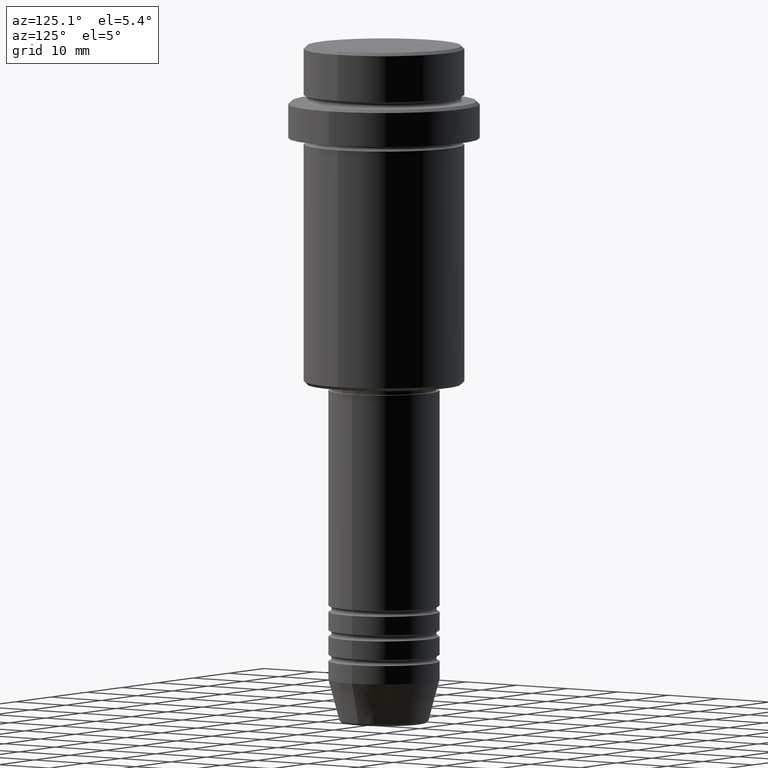
[diagram: clean part render]
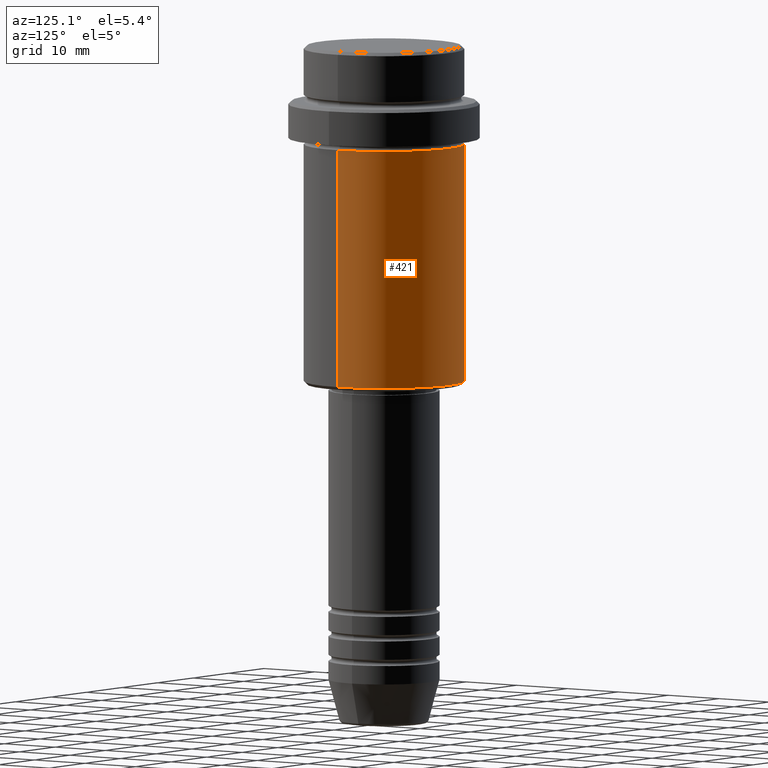
[diagram: same view with one face highlighted and labeled with its STEP entity id]
A machine part, auxiliary view. The second image highlights one B-rep face of the part: STEP entity #421.
In plain terms, the highlighted cylindrical surface (partial cylindrical patch) has radius 13 mm, axis along (-0, -0, 1).
Its self-contained STEP definition (entity closure, byte-faithful):
#39 = ORIENTED_EDGE ( 'NONE', *, *, #269, .F. ) ;
#51 = CIRCLE ( 'NONE', #1077, 13.00000000000000000 ) ;
#95 = LINE ( 'NONE', #523, #253 ) ;
#111 = ORIENTED_EDGE ( 'NONE', *, *, #211, .T. ) ;
#180 = EDGE_CURVE ( 'NONE', #1068, #1062, #496, .T. ) ;
#211 = EDGE_CURVE ( 'NONE', #543, #1068, #1231, .T. ) ;
#253 = VECTOR ( 'NONE', #984, 1000.000000000000000 ) ;
#269 = EDGE_CURVE ( 'NONE', #1111, #1062, #51, .T. ) ;
#290 = CARTESIAN_POINT ( 'NONE',  ( 0.000000000000000000, 0.000000000000000000, -16.00000000000000000 ) ) ;
#326 = CYLINDRICAL_SURFACE ( 'NONE', #1146, 13.00000000000000000 ) ;
#401 = CARTESIAN_POINT ( 'NONE',  ( 0.000000000000000000, 0.000000000000000000, -54.49999999999999289 ) ) ;
#415 = FACE_OUTER_BOUND ( 'NONE', #1390, .T. ) ;
#421 = ADVANCED_FACE ( 'NONE', ( #415 ), #326, .T. ) ;
#466 = CARTESIAN_POINT ( 'NONE',  ( 13.00000000000000000, 0.000000000000000000, -16.00000000000000000 ) ) ;
#496 = LINE ( 'NONE', #622, #876 ) ;
#523 = CARTESIAN_POINT ( 'NONE',  ( 13.00000000000000000, 0.000000000000000000, 0.000000000000000000 ) ) ;
#543 = VERTEX_POINT ( 'NONE', #556 ) ;
#556 = CARTESIAN_POINT ( 'NONE',  ( 13.00000000000000000, 0.000000000000000000, -54.49999999999999289 ) ) ;
#599 = DIRECTION ( 'NONE',  ( -1.000000000000000000, 0.000000000000000000, 0.000000000000000000 ) ) ;
#622 = CARTESIAN_POINT ( 'NONE',  ( -13.00000000000000000, 1.592040838891559095E-15, 0.000000000000000000 ) ) ;
#730 = DIRECTION ( 'NONE',  ( -0.000000000000000000, -0.000000000000000000, 1.000000000000000000 ) ) ;
#764 = DIRECTION ( 'NONE',  ( 1.000000000000000000, 0.000000000000000000, 0.000000000000000000 ) ) ;
#844 = EDGE_CURVE ( 'NONE', #543, #1111, #95, .T. ) ;
#876 = VECTOR ( 'NONE', #1382, 1000.000000000000000 ) ;
#984 = DIRECTION ( 'NONE',  ( -0.000000000000000000, -0.000000000000000000, 1.000000000000000000 ) ) ;
#1052 = ORIENTED_EDGE ( 'NONE', *, *, #844, .F. ) ;
#1062 = VERTEX_POINT ( 'NONE', #1239 ) ;
#1068 = VERTEX_POINT ( 'NONE', #1355 ) ;
#1077 = AXIS2_PLACEMENT_3D ( 'NONE', #290, #730, #1163 ) ;
#1111 = VERTEX_POINT ( 'NONE', #466 ) ;
#1146 = AXIS2_PLACEMENT_3D ( 'NONE', #1292, #1176, #764 ) ;
#1163 = DIRECTION ( 'NONE',  ( 1.000000000000000000, 0.000000000000000000, 0.000000000000000000 ) ) ;
#1176 = DIRECTION ( 'NONE',  ( -0.000000000000000000, -0.000000000000000000, 1.000000000000000000 ) ) ;
#1231 = CIRCLE ( 'NONE', #1258, 13.00000000000000000 ) ;
#1239 = CARTESIAN_POINT ( 'NONE',  ( -13.00000000000000000, 1.592040838891559095E-15, -16.00000000000000000 ) ) ;
#1258 = AXIS2_PLACEMENT_3D ( 'NONE', #401, #1265, #599 ) ;
#1265 = DIRECTION ( 'NONE',  ( -0.000000000000000000, -0.000000000000000000, 1.000000000000000000 ) ) ;
#1278 = ORIENTED_EDGE ( 'NONE', *, *, #180, .T. ) ;
#1292 = CARTESIAN_POINT ( 'NONE',  ( 0.000000000000000000, 0.000000000000000000, 0.000000000000000000 ) ) ;
#1355 = CARTESIAN_POINT ( 'NONE',  ( -13.00000000000000000, 1.592040838891559095E-15, -54.49999999999999289 ) ) ;
#1382 = DIRECTION ( 'NONE',  ( -0.000000000000000000, -0.000000000000000000, 1.000000000000000000 ) ) ;
#1390 = EDGE_LOOP ( 'NONE', ( #111, #1278, #39, #1052 ) ) ;